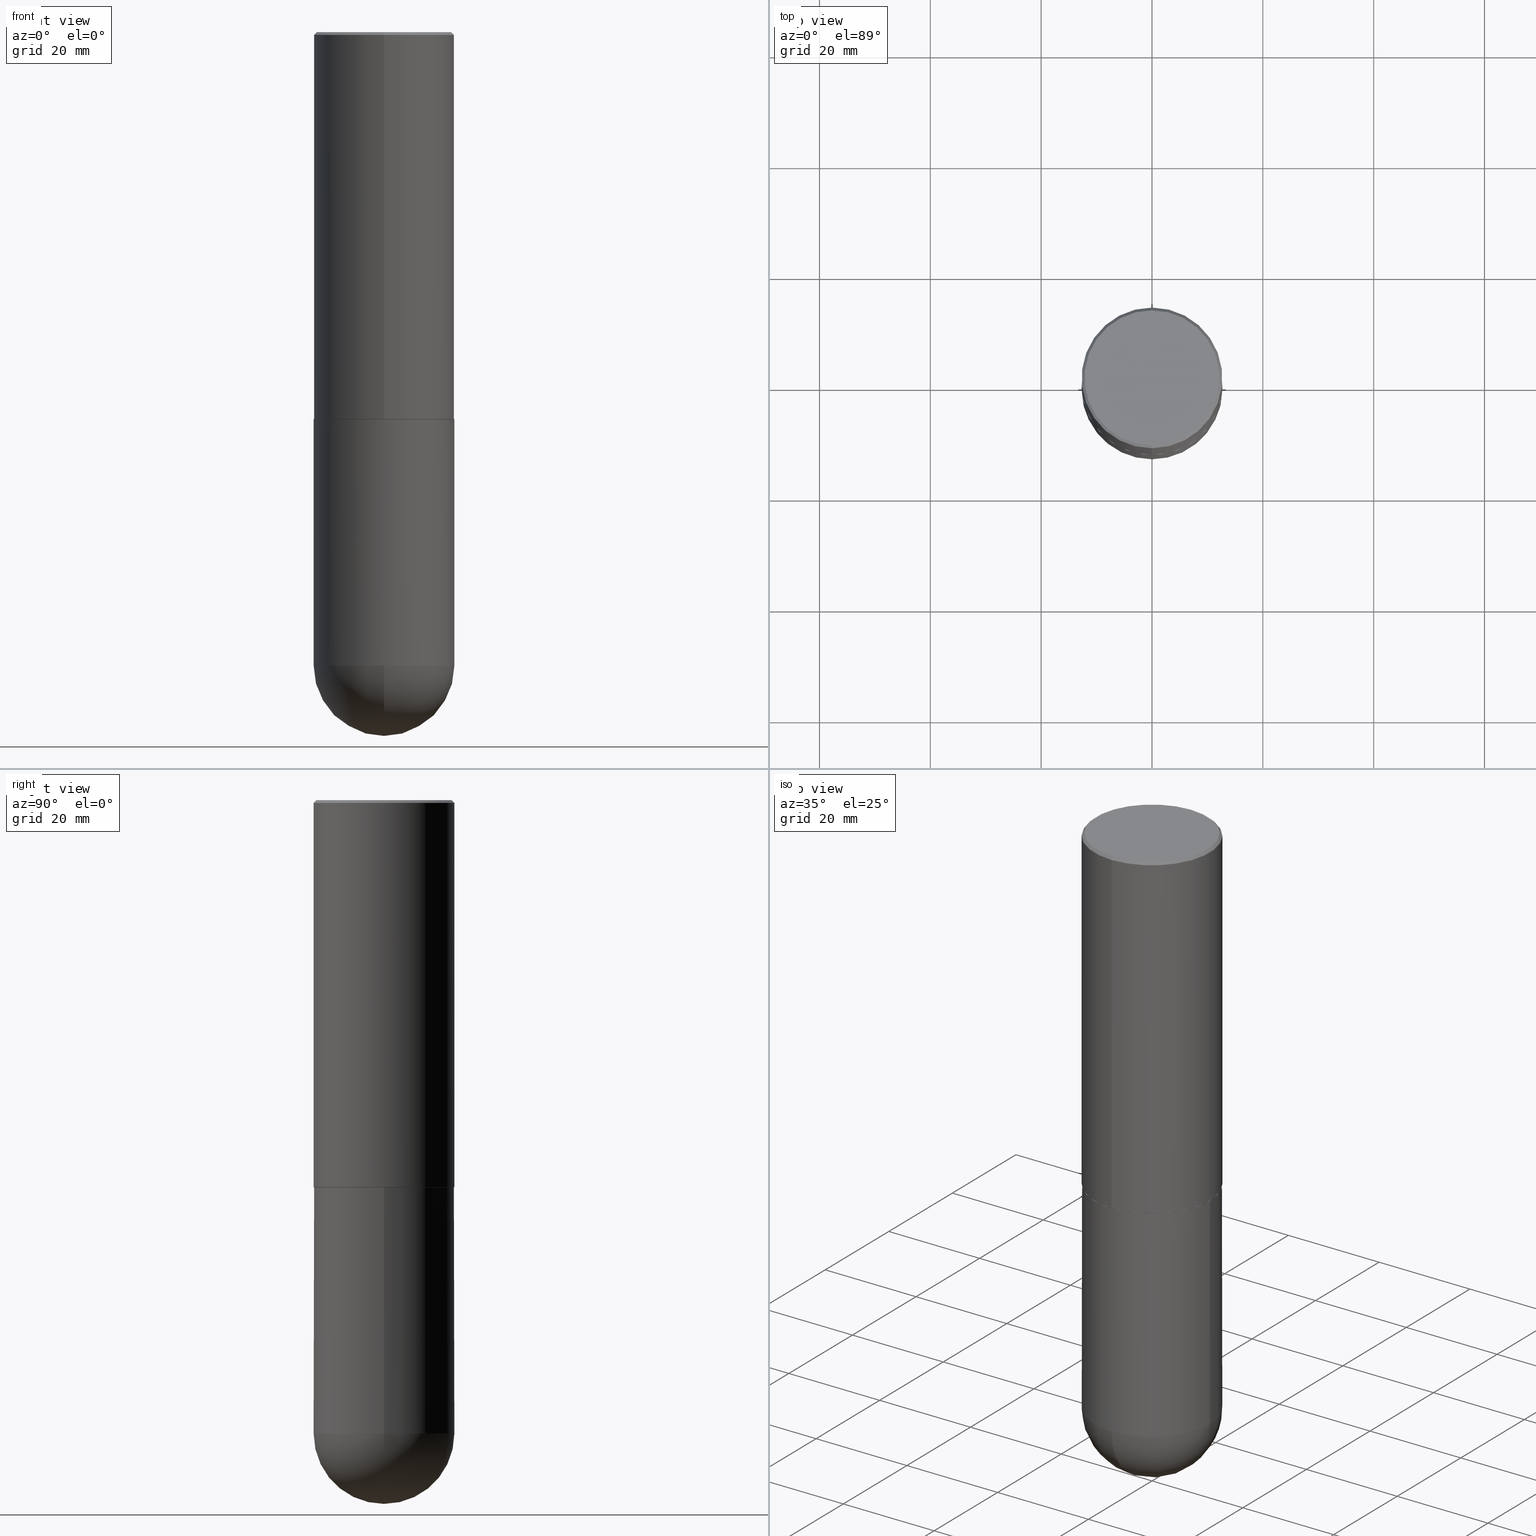
[diagram: canonical four-view strip — front | top / right | iso, engineering-drawing reading convention]
A machine part, canonical four-view strip (front | top / right | iso — engineering-drawing reading convention). The complete STEP part file that produces these views, byte-faithful:
ISO-10303-21;
HEADER;
FILE_DESCRIPTION (( 'STEP AP203' ),
    '1' );
FILE_NAME ('31899.STEP',
    '2024-02-21T17:08:31',
    ( '' ),
    ( '' ),
    'SwSTEP 2.0',
    'SolidWorks 2023',
    '' );
FILE_SCHEMA (( 'CONFIG_CONTROL_DESIGN' ));
ENDSEC;

DATA;
#1 = DIRECTION ( 'NONE',  ( 6.982962677686265922E-15, 1.000000000000000000, -3.278217592397114284E-15 ) ) ;
#2 = CLOSED_SHELL ( 'NONE', ( #189, #10, #110, #310, #321, #291, #235, #168 ) ) ;
#3 = DIRECTION ( 'NONE',  ( -2.445544383253700702E-29, 3.491373108179382004E-15, 1.000000000000000000 ) ) ;
#4 = AXIS2_PLACEMENT_3D ( 'NONE', #370, #64, #314 ) ;
#5 = FACE_OUTER_BOUND ( 'NONE', #52, .T. ) ;
#6 = DIRECTION ( 'NONE',  ( -6.982962677686265922E-15, -1.000000000000000000, 3.491373108179382399E-15 ) ) ;
#7 = CARTESIAN_POINT ( 'NONE',  ( 1.067348984991922956E-28, -1.618584839293420562E-14, -4.500000000000000000 ) ) ;
#8 = SPHERICAL_SURFACE ( 'NONE', #31, 0.5000000000000002220 ) ;
#9 = VECTOR ( 'NONE', #378, 39.37007874015748143 ) ;
#10 = ADVANCED_FACE ( 'NONE', ( #38 ), #125, .T. ) ;
#11 = EDGE_CURVE ( 'NONE', #402, #353, #230, .T. ) ;
#12 = ADVANCED_BREP_SHAPE_REPRESENTATION ( '31899', ( #260, #121, #95 ), #403 ) ;
#13 = ORIENTED_EDGE ( 'NONE', *, *, #245, .T. ) ;
#14 = CIRCLE ( 'NONE', #255, 0.4999999999999999445 ) ;
#15 = VERTEX_POINT ( 'NONE', #285 ) ;
#16 = APPROVAL_DATE_TIME ( #173, #396 ) ;
#17 = DESIGN_CONTEXT ( 'detailed design', #91, 'design' ) ;
#18 = DIRECTION ( 'NONE',  ( -2.445544383253700702E-29, 3.491373108179382004E-15, 1.000000000000000000 ) ) ;
#19 = ORIENTED_EDGE ( 'NONE', *, *, #320, .T. ) ;
#20 = DIMENSIONAL_EXPONENTS ( 1.000000000000000000, 0.000000000000000000, 0.000000000000000000, 0.000000000000000000, 0.000000000000000000, 0.000000000000000000, 0.000000000000000000 ) ;
#21 = CARTESIAN_POINT ( 'NONE',  ( 1.100460962783311244E-28, -1.571166602479415374E-14, -4.499999999999999112 ) ) ;
#22 = LOCAL_TIME ( 12, 8, 31.00000000000000000, #85 ) ;
#23 = PERSON_AND_ORGANIZATION ( #328, #361 ) ;
#24 = DIRECTION ( 'NONE',  ( -2.445468806185136597E-29, 3.491481338843145583E-15, 1.000000000000000000 ) ) ;
#25 = ORIENTED_EDGE ( 'NONE', *, *, #386, .F. ) ;
#26 = CARTESIAN_POINT ( 'NONE',  ( 6.722801509564422715E-29, -9.597784674385121064E-15, -2.749000000000000110 ) ) ;
#27 = DIRECTION ( 'NONE',  ( -6.982962677686265922E-15, -1.000000000000000000, 3.491373108179382004E-15 ) ) ;
#28 = CC_DESIGN_PERSON_AND_ORGANIZATION_ASSIGNMENT ( #305, #181, ( #385 ) ) ;
#29 = CARTESIAN_POINT ( 'NONE',  ( 1.067348984991922956E-28, -1.618584839293420562E-14, -4.500000000000000000 ) ) ;
#30 = PERSON_AND_ORGANIZATION ( #328, #361 ) ;
#31 = AXIS2_PLACEMENT_3D ( 'NONE', #171, #266, #172 ) ;
#32 = CC_DESIGN_APPROVAL ( #294, ( #385 ) ) ;
#33 = CARTESIAN_POINT ( 'NONE',  ( 4.891088766507428205E-31, -6.982746216358801726E-17, -0.02000000000000010797 ) ) ;
#34 = CARTESIAN_POINT ( 'NONE',  ( 4.891088766507428205E-31, -6.982746216358801726E-17, -0.02000000000000010797 ) ) ;
#35 = CARTESIAN_POINT ( 'NONE',  ( 0.000000000000000000, 0.000000000000000000, 0.000000000000000000 ) ) ;
#36 = FACE_OUTER_BOUND ( 'NONE', #265, .T. ) ;
#37 = CARTESIAN_POINT ( 'NONE',  ( 4.891088766507428205E-31, -6.982746216358801726E-17, -0.02000000000000010797 ) ) ;
#38 = FACE_OUTER_BOUND ( 'NONE', #267, .T. ) ;
#39 = ADVANCED_FACE ( 'NONE', ( #356 ), #8, .T. ) ;
#40 = CARTESIAN_POINT ( 'NONE',  ( 3.491481338843242218E-15, 0.4999999999999841238, -4.500000000000000888 ) ) ;
#41 = DIRECTION ( 'NONE',  ( -6.982962677686265922E-15, -1.000000000000000000, 3.491643216902136802E-15 ) ) ;
#42 = ORIENTED_EDGE ( 'NONE', *, *, #362, .T. ) ;
#43 = DIRECTION ( 'NONE',  ( -2.445544383253700983E-29, 3.491373108179382004E-15, 1.000000000000000000 ) ) ;
#44 = VERTEX_POINT ( 'NONE', #69 ) ;
#45 = EDGE_LOOP ( 'NONE', ( #229, #372, #334, #313 ) ) ;
#46 = PERSON_AND_ORGANIZATION ( #328, #361 ) ;
#47 = EDGE_LOOP ( 'NONE', ( #101, #65, #77, #217 ) ) ;
#48 = CLOSED_SHELL ( 'NONE', ( #104, #39, #132, #202, #199 ) ) ;
#49 = CC_DESIGN_APPROVAL ( #74, ( #76 ) ) ;
#50 = ORIENTED_EDGE ( 'NONE', *, *, #409, .T. ) ;
#51 = DIRECTION ( 'NONE',  ( 2.445544383253700422E-29, -3.491373108179382004E-15, -1.000000000000000000 ) ) ;
#52 = EDGE_LOOP ( 'NONE', ( #135, #257, #389, #316 ) ) ;
#53 = EDGE_CURVE ( 'NONE', #203, #94, #394, .T. ) ;
#54 = DIRECTION ( 'NONE',  ( -7.105427357601001859E-15, -1.000000000000000000, 0.000000000000000000 ) ) ;
#55 = DIRECTION ( 'NONE',  ( -2.445468806185136597E-29, 3.491481338843145583E-15, 1.000000000000000000 ) ) ;
#56 = CARTESIAN_POINT ( 'NONE',  ( 1.100460962783311244E-28, -1.571166602479415374E-14, -4.499999999999999112 ) ) ;
#57 = CARTESIAN_POINT ( 'NONE',  ( -3.552713678800393250E-15, -0.5000000000000160982, -4.499999999999998224 ) ) ;
#58 = PERSON_AND_ORGANIZATION_ROLE ( 'classification_officer' ) ;
#59 = AXIS2_PLACEMENT_3D ( 'NONE', #300, #24, #244 ) ;
#60 = AXIS2_PLACEMENT_3D ( 'NONE', #242, #92, #178 ) ;
#61 = DIRECTION ( 'NONE',  ( -2.445468806185136597E-29, 3.491481338843145583E-15, 1.000000000000000000 ) ) ;
#62 = DIRECTION ( 'NONE',  ( -6.982962677686265922E-15, -1.000000000000000000, 3.278217592397113496E-15 ) ) ;
#63 = ORIENTED_EDGE ( 'NONE', *, *, #297, .T. ) ;
#64 = DIRECTION ( 'NONE',  ( -2.445468806185136597E-29, 3.491481338843145583E-15, 1.000000000000000000 ) ) ;
#65 = ORIENTED_EDGE ( 'NONE', *, *, #53, .F. ) ;
#66 = LINE ( 'NONE', #254, #9 ) ;
#67 = ORIENTED_EDGE ( 'NONE', *, *, #80, .T. ) ;
#68 = CIRCLE ( 'NONE', #354, 0.4989999999999999991 ) ;
#69 = CARTESIAN_POINT ( 'NONE',  ( 3.549160965121768662E-15, 0.4989999999999903402, -2.750000000000002220 ) ) ;
#70 = CARTESIAN_POINT ( 'NONE',  ( 6.725247053947675811E-29, -9.601276047493300215E-15, -2.750000000000000000 ) ) ;
#71 = EDGE_CURVE ( 'NONE', #195, #148, #128, .T. ) ;
#72 = DIRECTION ( 'NONE',  ( -2.445544383253700422E-29, 3.491373108179382004E-15, 1.000000000000000000 ) ) ;
#73 = AXIS2_PLACEMENT_3D ( 'NONE', #21, #365, #108 ) ;
#74 = APPROVAL ( #276, 'UNSPECIFIED' ) ;
#75 = PERSON_AND_ORGANIZATION ( #328, #361 ) ;
#76 = SECURITY_CLASSIFICATION ( '', '', #248 ) ;
#77 = ORIENTED_EDGE ( 'NONE', *, *, #299, .T. ) ;
#78 = EDGE_CURVE ( 'NONE', #141, #15, #358, .T. ) ;
#79 = APPROVAL_ROLE ( '' ) ;
#80 = EDGE_CURVE ( 'NONE', #353, #195, #116, .T. ) ;
#81 = MECHANICAL_CONTEXT ( 'NONE', #366, 'mechanical' ) ;
#82 = LINE ( 'NONE', #150, #261 ) ;
#83 = VECTOR ( 'NONE', #164, 39.37007874015748143 ) ;
#84 = EDGE_CURVE ( 'NONE', #247, #44, #68, .T. ) ;
#85 = COORDINATED_UNIVERSAL_TIME_OFFSET ( 5, 0, .BEHIND. ) ;
#86 = FACE_OUTER_BOUND ( 'NONE', #47, .T. ) ;
#87 = CARTESIAN_POINT ( 'NONE',  ( 6.725247053947676932E-29, -9.601276047493301793E-15, -2.750000000000000444 ) ) ;
#88 = VERTEX_POINT ( 'NONE', #147 ) ;
#89 = CARTESIAN_POINT ( 'NONE',  ( 1.067348984991922956E-28, -1.618584839293420562E-14, -4.500000000000000000 ) ) ;
#90 = VERTEX_POINT ( 'NONE', #359 ) ;
#91 = APPLICATION_CONTEXT ( 'configuration controlled 3d designs of mechanical parts and assemblies' ) ;
#92 = DIRECTION ( 'NONE',  ( -2.445544383253700702E-29, 3.491373108179382004E-15, 1.000000000000000000 ) ) ;
#93 = DIRECTION ( 'NONE',  ( 2.438088387897960049E-29, -3.491481338843145188E-15, -1.000000000000000000 ) ) ;
#94 = VERTEX_POINT ( 'NONE', #399 ) ;
#95 = AXIS2_PLACEMENT_3D ( 'NONE', #143, #393, #109 ) ;
#96 = VECTOR ( 'NONE', #338, 39.37007874015748143 ) ;
#97 = DIRECTION ( 'NONE',  ( -4.937700262164547253E-15, -0.7071067811865450192, 0.7071067811865499042 ) ) ;
#98 = DIRECTION ( 'NONE',  ( -6.982962677686265922E-15, -1.000000000000000000, 3.284787166730577015E-15 ) ) ;
#99 = DIRECTION ( 'NONE',  ( 5.024295867788060812E-15, 0.7071067811865499042, 0.7071067811865450192 ) ) ;
#100 = EDGE_CURVE ( 'NONE', #191, #141, #153, .T. ) ;
#101 = ORIENTED_EDGE ( 'NONE', *, *, #146, .F. ) ;
#102 = CONICAL_SURFACE ( 'NONE', #384, 0.4999999999999999445, 0.7853981633974447263 ) ;
#103 = CIRCLE ( 'NONE', #163, 0.5000000000000000000 ) ;
#104 = ADVANCED_FACE ( 'NONE', ( #117 ), #216, .T. ) ;
#105 =( NAMED_UNIT ( * ) SI_UNIT ( $, .STERADIAN. ) SOLID_ANGLE_UNIT ( ) );
#106 = CC_DESIGN_PERSON_AND_ORGANIZATION_ASSIGNMENT ( #187, #377, ( #385 ) ) ;
#107 = ORIENTED_EDGE ( 'NONE', *, *, #113, .F. ) ;
#108 = DIRECTION ( 'NONE',  ( 1.000000000000000000, -6.982962677686262766E-15, 0.000000000000000000 ) ) ;
#109 = DIRECTION ( 'NONE',  ( 1.000000000000000000, 0.000000000000000000, 0.000000000000000000 ) ) ;
#110 = ADVANCED_FACE ( 'NONE', ( #5 ), #102, .T. ) ;
#111 = PLANE ( 'NONE',  #264 ) ;
#112 = DIRECTION ( 'NONE',  ( -2.445468806185136597E-29, 3.491481338843145583E-15, 1.000000000000000000 ) ) ;
#113 = EDGE_CURVE ( 'NONE', #253, #15, #162, .T. ) ;
#114 = EDGE_LOOP ( 'NONE', ( #186, #332, #298, #330 ) ) ;
#115 = APPROVAL_ROLE ( '' ) ;
#116 = CIRCLE ( 'NONE', #139, 0.5000000000000000000 ) ;
#117 = FACE_OUTER_BOUND ( 'NONE', #363, .T. ) ;
#118 = CONICAL_SURFACE ( 'NONE', #295, 0.4999999999999999445, 0.7853981633974447263 ) ;
#119 = SHAPE_DEFINITION_REPRESENTATION ( #165, #12 ) ;
#120 = DIRECTION ( 'NONE',  ( -6.982962677686265922E-15, -1.000000000000000000, 3.284787166730577015E-15 ) ) ;
#121 = MANIFOLD_SOLID_BREP ( 'Body-Move/Copy2[2]', #2 ) ;
#122 = DIRECTION ( 'NONE',  ( 1.000000000000000000, -6.982962677686266711E-15, 4.876176775795935793E-29 ) ) ;
#123 = APPROVAL_DATE_TIME ( #311, #74 ) ;
#124 = PLANE ( 'NONE',  #175 ) ;
#125 = CYLINDRICAL_SURFACE ( 'NONE', #343, 0.5000000000000001110 ) ;
#126 = DIRECTION ( 'NONE',  ( 2.445544383253700702E-29, -3.491373108179382004E-15, -1.000000000000000000 ) ) ;
#127 = CARTESIAN_POINT ( 'NONE',  ( 3.421651712066269268E-15, 0.4799999999999996492, -1.377115168337680020E-15 ) ) ;
#128 = CIRCLE ( 'NONE', #73, 0.5000000000000000000 ) ;
#129 = EDGE_LOOP ( 'NONE', ( #383, #197, #225, #151 ) ) ;
#130 = DATE_TIME_ROLE ( 'creation_date' ) ;
#131 = AXIS2_PLACEMENT_3D ( 'NONE', #87, #309, #213 ) ;
#132 = ADVANCED_FACE ( 'NONE', ( #289 ), #315, .T. ) ;
#133 = DIRECTION ( 'NONE',  ( 4.937700262164529898E-15, 0.7071067811865425767, -0.7071067811865524577 ) ) ;
#134 = CARTESIAN_POINT ( 'NONE',  ( 3.552713678800536428E-15, 0.4999999999999907296, -2.749000000000001886 ) ) ;
#135 = ORIENTED_EDGE ( 'NONE', *, *, #320, .F. ) ;
#136 = FACE_OUTER_BOUND ( 'NONE', #198, .T. ) ;
#137 = CIRCLE ( 'NONE', #59, 0.5000000000000000000 ) ;
#138 = LOCAL_TIME ( 12, 8, 31.00000000000000000, #347 ) ;
#139 = AXIS2_PLACEMENT_3D ( 'NONE', #397, #112, #392 ) ;
#140 = CONICAL_SURFACE ( 'NONE', #131, 0.4989999999999999991, 0.7853981633974482790 ) ;
#141 = VERTEX_POINT ( 'NONE', #134 ) ;
#142 = PERSON_AND_ORGANIZATION_ROLE ( 'creator' ) ;
#143 = CARTESIAN_POINT ( 'NONE',  ( 0.000000000000000000, 0.000000000000000000, 0.000000000000000000 ) ) ;
#144 = LOCAL_TIME ( 12, 8, 31.00000000000000000, #192 ) ;
#145 = ORIENTED_EDGE ( 'NONE', *, *, #219, .F. ) ;
#146 = EDGE_CURVE ( 'NONE', #94, #253, #82, .T. ) ;
#147 = CARTESIAN_POINT ( 'NONE',  ( -0.5000000000000000000, -9.103906174505900082E-15, -2.750000000000000000 ) ) ;
#148 = VERTEX_POINT ( 'NONE', #57 ) ;
#149 = DATE_AND_TIME ( #226, #144 ) ;
#150 = CARTESIAN_POINT ( 'NONE',  ( -3.430248998885764598E-15, -0.5000000000000000000, -0.01999999999999835937 ) ) ;
#151 = ORIENTED_EDGE ( 'NONE', *, *, #329, .F. ) ;
#152 = DATE_AND_TIME ( #258, #379 ) ;
#153 = CIRCLE ( 'NONE', #368, 0.5000000000000003331 ) ;
#154 = CIRCLE ( 'NONE', #4, 0.5000000000000000000 ) ;
#155 = DIRECTION ( 'NONE',  ( -2.445468806185136597E-29, 3.491481338843145583E-15, 1.000000000000000000 ) ) ;
#156 = FACE_OUTER_BOUND ( 'NONE', #337, .T. ) ;
#157 = DIRECTION ( 'NONE',  ( 1.000000000000000000, -6.982962677686265922E-15, 4.883557194083112340E-29 ) ) ;
#158 = CARTESIAN_POINT ( 'NONE',  ( 6.725039217009124520E-29, -9.601573681818649859E-15, -2.750000000000000000 ) ) ;
#159 = VERTEX_POINT ( 'NONE', #212 ) ;
#160 = CARTESIAN_POINT ( 'NONE',  ( -3.430248998885764598E-15, -0.5000000000000000000, -0.01999999999999835937 ) ) ;
#161 = DIRECTION ( 'NONE',  ( -1.000000000000000000, 6.982962677686265922E-15, -4.883557194083113462E-29 ) ) ;
#162 = CIRCLE ( 'NONE', #278, 0.4999999999999999445 ) ;
#163 = AXIS2_PLACEMENT_3D ( 'NONE', #158, #61, #283 ) ;
#164 = DIRECTION ( 'NONE',  ( -2.445468806185136877E-29, 3.491481338843145188E-15, 1.000000000000000000 ) ) ;
#165 = PRODUCT_DEFINITION_SHAPE ( 'NONE', 'NONE',  #274 ) ;
#166 = VECTOR ( 'NONE', #133, 39.37007874015748143 ) ;
#167 = APPLICATION_PROTOCOL_DEFINITION ( 'international standard', 'config_control_design', 1994, #91 ) ;
#168 = ADVANCED_FACE ( 'NONE', ( #185 ), #333, .F. ) ;
#169 = ORIENTED_EDGE ( 'NONE', *, *, #53, .T. ) ;
#170 = EDGE_CURVE ( 'NONE', #88, #159, #137, .T. ) ;
#171 = CARTESIAN_POINT ( 'NONE',  ( 1.067348984991922956E-28, -1.618584839293420562E-14, -4.500000000000000000 ) ) ;
#172 = DIRECTION ( 'NONE',  ( 6.982962677686265922E-15, 1.000000000000000000, -3.278217592397114284E-15 ) ) ;
#173 = DATE_AND_TIME ( #210, #231 ) ;
#174 = AXIS2_PLACEMENT_3D ( 'NONE', #303, #55, #279 ) ;
#175 = AXIS2_PLACEMENT_3D ( 'NONE', #376, #93, #345 ) ;
#176 = DIRECTION ( 'NONE',  ( 6.982962677686265922E-15, 1.000000000000000000, -3.491373108179382004E-15 ) ) ;
#177 = ORIENTED_EDGE ( 'NONE', *, *, #245, .F. ) ;
#178 = DIRECTION ( 'NONE',  ( -6.982962677686265922E-15, -1.000000000000000000, 3.491373108179382399E-15 ) ) ;
#179 = FACE_OUTER_BOUND ( 'NONE', #346, .T. ) ;
#180 = ORIENTED_EDGE ( 'NONE', *, *, #84, .F. ) ;
#181 = PERSON_AND_ORGANIZATION_ROLE ( 'creator' ) ;
#182 = CARTESIAN_POINT ( 'NONE',  ( 3.491481338843132961E-15, 0.4999999999999998335, -0.02000000000000185310 ) ) ;
#183 = CC_DESIGN_PERSON_AND_ORGANIZATION_ASSIGNMENT ( #30, #58, ( #76 ) ) ;
#184 = AXIS2_PLACEMENT_3D ( 'NONE', #89, #161, #1 ) ;
#185 = FACE_OUTER_BOUND ( 'NONE', #275, .T. ) ;
#186 = ORIENTED_EDGE ( 'NONE', *, *, #387, .F. ) ;
#187 = PERSON_AND_ORGANIZATION ( #328, #361 ) ;
#188 = LINE ( 'NONE', #182, #166 ) ;
#189 = ADVANCED_FACE ( 'NONE', ( #371 ), #140, .T. ) ;
#190 = DIRECTION ( 'NONE',  ( -2.445468806185136597E-29, 3.491481338843145583E-15, 1.000000000000000000 ) ) ;
#191 = VERTEX_POINT ( 'NONE', #408 ) ;
#192 = COORDINATED_UNIVERSAL_TIME_OFFSET ( 5, 0, .BEHIND. ) ;
#193 = CARTESIAN_POINT ( 'NONE',  ( 4.891088766507428205E-31, -6.982746216358801726E-17, -0.02000000000000010797 ) ) ;
#194 = DIRECTION ( 'NONE',  ( 6.982962677686265922E-15, 1.000000000000000000, -3.491643216902136802E-15 ) ) ;
#195 = VERTEX_POINT ( 'NONE', #336 ) ;
#196 = CARTESIAN_POINT ( 'NONE',  ( -3.484498376165379105E-15, -0.4990000000000096025, -2.749999999999998668 ) ) ;
#197 = ORIENTED_EDGE ( 'NONE', *, *, #387, .T. ) ;
#198 = EDGE_LOOP ( 'NONE', ( #180, #145 ) ) ;
#199 = ADVANCED_FACE ( 'NONE', ( #179 ), #405, .T. ) ;
#200 = CIRCLE ( 'NONE', #319, 0.4799999999999996492 ) ;
#201 = CARTESIAN_POINT ( 'NONE',  ( 6.722801509564422715E-29, -9.597784674385121064E-15, -2.749000000000000110 ) ) ;
#202 = ADVANCED_FACE ( 'NONE', ( #156 ), #124, .F. ) ;
#203 = VERTEX_POINT ( 'NONE', #127 ) ;
#204 = ORIENTED_EDGE ( 'NONE', *, *, #71, .T. ) ;
#205 = UNCERTAINTY_MEASURE_WITH_UNIT (LENGTH_MEASURE( 1.000000000000000082E-05 ), #407, 'distance_accuracy_value', 'NONE');
#206 = CIRCLE ( 'NONE', #369, 0.5000000000000003331 ) ;
#207 = PERSON_AND_ORGANIZATION_ROLE ( 'design_owner' ) ;
#208 = PRODUCT_RELATED_PRODUCT_CATEGORY ( 'detail', '', ( #228 ) ) ;
#209 = ORIENTED_EDGE ( 'NONE', *, *, #349, .T. ) ;
#210 = CALENDAR_DATE ( 2024, 21, 2 ) ;
#211 = CIRCLE ( 'NONE', #325, 0.5000000000000000000 ) ;
#212 = CARTESIAN_POINT ( 'NONE',  ( 0.5000000000000000000, -1.309305502066178321E-14, -2.750000000000000000 ) ) ;
#213 = DIRECTION ( 'NONE',  ( -6.982962677686265922E-15, -1.000000000000000000, 3.284787166730577015E-15 ) ) ;
#214 = COORDINATED_UNIVERSAL_TIME_OFFSET ( 5, 0, .BEHIND. ) ;
#215 = DIRECTION ( 'NONE',  ( -6.982962677686265922E-15, -1.000000000000000000, 3.491373108179382399E-15 ) ) ;
#216 = CYLINDRICAL_SURFACE ( 'NONE', #174, 0.5000000000000000000 ) ;
#217 = ORIENTED_EDGE ( 'NONE', *, *, #352, .T. ) ;
#218 = APPROVAL_STATUS ( 'not_yet_approved' ) ;
#219 = EDGE_CURVE ( 'NONE', #44, #247, #262, .T. ) ;
#220 = CARTESIAN_POINT ( 'NONE',  ( 6.725247053947676932E-29, -9.601276047493301793E-15, -2.750000000000000444 ) ) ;
#221 = DIRECTION ( 'NONE',  ( -2.445544383253700702E-29, 3.491373108179382004E-15, 1.000000000000000000 ) ) ;
#222 = CIRCLE ( 'NONE', #238, 0.5000000000000002220 ) ;
#223 = CALENDAR_DATE ( 2024, 21, 2 ) ;
#224 = DIRECTION ( 'NONE',  ( -2.445544383253700702E-29, 3.491373108179382004E-15, 1.000000000000000000 ) ) ;
#225 = ORIENTED_EDGE ( 'NONE', *, *, #100, .F. ) ;
#226 = CALENDAR_DATE ( 2024, 21, 2 ) ;
#227 = CARTESIAN_POINT ( 'NONE',  ( 1.191760341024128201E-28, -1.790097289237709482E-14, -5.000000000000000000 ) ) ;
#228 = PRODUCT ( '31899', '31899', '', ( #81 ) ) ;
#229 = ORIENTED_EDGE ( 'NONE', *, *, #292, .F. ) ;
#230 = CIRCLE ( 'NONE', #307, 0.5000000000000002220 ) ;
#231 = LOCAL_TIME ( 12, 8, 31.00000000000000000, #390 ) ;
#232 = ORIENTED_EDGE ( 'NONE', *, *, #71, .F. ) ;
#233 = ORIENTED_EDGE ( 'NONE', *, *, #386, .T. ) ;
#234 = APPROVAL_PERSON_ORGANIZATION ( #23, #294, #272 ) ;
#235 = ADVANCED_FACE ( 'NONE', ( #136 ), #111, .F. ) ;
#236 = DIRECTION ( 'NONE',  ( -6.982962677686265922E-15, -1.000000000000000000, 3.491373108179382399E-15 ) ) ;
#237 = APPLICATION_PROTOCOL_DEFINITION ( 'international standard', 'config_control_design', 1994, #366 ) ;
#238 = AXIS2_PLACEMENT_3D ( 'NONE', #7, #375, #54 ) ;
#239 = ORIENTED_EDGE ( 'NONE', *, *, #78, .F. ) ;
#240 = CARTESIAN_POINT ( 'NONE',  ( -7.305915243628390316E-45, 1.043026501048613982E-30, 2.987439235884223367E-16 ) ) ;
#241 = ORIENTED_EDGE ( 'NONE', *, *, #170, .F. ) ;
#242 = CARTESIAN_POINT ( 'NONE',  ( 0.000000000000000000, 0.000000000000000000, 0.000000000000000000 ) ) ;
#243 = AXIS2_PLACEMENT_3D ( 'NONE', #256, #380, #98 ) ;
#244 = DIRECTION ( 'NONE',  ( 1.000000000000000000, -6.982962677686266711E-15, 0.000000000000000000 ) ) ;
#245 = EDGE_CURVE ( 'NONE', #159, #88, #103, .T. ) ;
#246 = CC_DESIGN_DATE_AND_TIME_ASSIGNMENT ( #149, #130, ( #274 ) ) ;
#247 = VERTEX_POINT ( 'NONE', #342 ) ;
#248 = SECURITY_CLASSIFICATION_LEVEL ( 'unclassified' ) ;
#249 =( LENGTH_UNIT ( ) NAMED_UNIT ( * ) SI_UNIT ( $, .METRE. ) );
#250 = DIRECTION ( 'NONE',  ( 2.445544383253700702E-29, -3.491373108179382004E-15, -1.000000000000000000 ) ) ;
#251 = ORIENTED_EDGE ( 'NONE', *, *, #292, .T. ) ;
#252 = LINE ( 'NONE', #412, #83 ) ;
#253 = VERTEX_POINT ( 'NONE', #160 ) ;
#254 = CARTESIAN_POINT ( 'NONE',  ( -3.491481338843133750E-15, -0.5000000000000001110, 1.745686554089691594E-15 ) ) ;
#255 = AXIS2_PLACEMENT_3D ( 'NONE', #33, #3, #41 ) ;
#256 = CARTESIAN_POINT ( 'NONE',  ( 6.725247053947676932E-29, -9.601276047493301793E-15, -2.750000000000000444 ) ) ;
#257 = ORIENTED_EDGE ( 'NONE', *, *, #146, .T. ) ;
#258 = CALENDAR_DATE ( 2024, 21, 2 ) ;
#259 = DIRECTION ( 'NONE',  ( -2.445544383253700702E-29, 3.491373108179382004E-15, 1.000000000000000000 ) ) ;
#260 = MANIFOLD_SOLID_BREP ( 'Body-Move/Copy2[1]', #48 ) ;
#261 = VECTOR ( 'NONE', #339, 39.37007874015748143 ) ;
#262 = CIRCLE ( 'NONE', #243, 0.4989999999999999991 ) ;
#263 = CC_DESIGN_DATE_AND_TIME_ASSIGNMENT ( #406, #400, ( #76 ) ) ;
#264 = AXIS2_PLACEMENT_3D ( 'NONE', #70, #72, #27 ) ;
#265 = EDGE_LOOP ( 'NONE', ( #239, #42, #410, #391 ) ) ;
#266 = DIRECTION ( 'NONE',  ( -1.000000000000000000, 6.982962677686265922E-15, -4.883557194083113462E-29 ) ) ;
#267 = EDGE_LOOP ( 'NONE', ( #271, #270, #107, #374 ) ) ;
#268 = AXIS2_PLACEMENT_3D ( 'NONE', #284, #190, #122 ) ;
#269 = CARTESIAN_POINT ( 'NONE',  ( 3.552713678800501718E-15, 0.5000000000000001110, -1.745686554089691594E-15 ) ) ;
#270 = ORIENTED_EDGE ( 'NONE', *, *, #78, .T. ) ;
#271 = ORIENTED_EDGE ( 'NONE', *, *, #100, .T. ) ;
#272 = APPROVAL_ROLE ( '' ) ;
#273 = EDGE_CURVE ( 'NONE', #191, #253, #66, .T. ) ;
#274 = PRODUCT_DEFINITION ( 'UNKNOWN', '', #385, #17 ) ;
#275 = EDGE_LOOP ( 'NONE', ( #169, #19 ) ) ;
#276 = APPROVAL_STATUS ( 'not_yet_approved' ) ;
#277 = DIRECTION ( 'NONE',  ( 6.982962677686265922E-15, 1.000000000000000000, -3.491643216902136802E-15 ) ) ;
#278 = AXIS2_PLACEMENT_3D ( 'NONE', #37, #221, #367 ) ;
#279 = DIRECTION ( 'NONE',  ( 1.000000000000000000, -6.982962677686266711E-15, 4.876176775795935793E-29 ) ) ;
#280 = LENGTH_MEASURE_WITH_UNIT ( LENGTH_MEASURE( 0.02539999999999999897 ), #249 );
#281 = DIRECTION ( 'NONE',  ( 6.982962677686266711E-15, 1.000000000000000000, 0.000000000000000000 ) ) ;
#282 = CC_DESIGN_PERSON_AND_ORGANIZATION_ASSIGNMENT ( #75, #207, ( #228 ) ) ;
#283 = DIRECTION ( 'NONE',  ( 1.000000000000000000, -6.982962677686266711E-15, 0.000000000000000000 ) ) ;
#284 = CARTESIAN_POINT ( 'NONE',  ( 0.000000000000000000, 0.000000000000000000, 0.000000000000000000 ) ) ;
#285 = CARTESIAN_POINT ( 'NONE',  ( 3.491481338843132961E-15, 0.4999999999999998335, -0.02000000000000185310 ) ) ;
#286 = LINE ( 'NONE', #196, #355 ) ;
#287 = AXIS2_PLACEMENT_3D ( 'NONE', #401, #51, #176 ) ;
#288 = CC_DESIGN_SECURITY_CLASSIFICATION ( #76, ( #385 ) ) ;
#289 = FACE_OUTER_BOUND ( 'NONE', #45, .T. ) ;
#290 = CARTESIAN_POINT ( 'NONE',  ( 3.545608251442966974E-15, 0.4989999999999903402, -2.750000000000002220 ) ) ;
#291 = ADVANCED_FACE ( 'NONE', ( #348 ), #344, .T. ) ;
#292 = EDGE_CURVE ( 'NONE', #402, #148, #222, .T. ) ;
#293 =( NAMED_UNIT ( * ) PLANE_ANGLE_UNIT ( ) SI_UNIT ( $, .RADIAN. ) );
#294 = APPROVAL ( #218, 'UNSPECIFIED' ) ;
#295 = AXIS2_PLACEMENT_3D ( 'NONE', #193, #126, #277 ) ;
#296 = CARTESIAN_POINT ( 'NONE',  ( 6.725247053947676932E-29, -9.601276047493301793E-15, -2.750000000000000444 ) ) ;
#297 = EDGE_CURVE ( 'NONE', #195, #88, #252, .T. ) ;
#298 = ORIENTED_EDGE ( 'NONE', *, *, #329, .T. ) ;
#299 = EDGE_CURVE ( 'NONE', #203, #15, #188, .T. ) ;
#300 = CARTESIAN_POINT ( 'NONE',  ( 6.725039217009124520E-29, -9.601573681818649859E-15, -2.750000000000000000 ) ) ;
#301 = ORIENTED_EDGE ( 'NONE', *, *, #170, .T. ) ;
#302 = DIRECTION ( 'NONE',  ( -6.982962677686265922E-15, -1.000000000000000000, 3.278217592397113496E-15 ) ) ;
#303 = CARTESIAN_POINT ( 'NONE',  ( 0.000000000000000000, 0.000000000000000000, 0.000000000000000000 ) ) ;
#304 = DIRECTION ( 'NONE',  ( -2.445544383253700702E-29, 3.491373108179382004E-15, 1.000000000000000000 ) ) ;
#305 = PERSON_AND_ORGANIZATION ( #328, #361 ) ;
#306 = LINE ( 'NONE', #290, #395 ) ;
#307 = AXIS2_PLACEMENT_3D ( 'NONE', #29, #157, #281 ) ;
#308 = APPROVAL_PERSON_ORGANIZATION ( #381, #74, #115 ) ;
#309 = DIRECTION ( 'NONE',  ( -2.445544383253700702E-29, 3.491373108179382004E-15, 1.000000000000000000 ) ) ;
#310 = ADVANCED_FACE ( 'NONE', ( #86 ), #118, .T. ) ;
#311 = DATE_AND_TIME ( #223, #138 ) ;
#312 = CARTESIAN_POINT ( 'NONE',  ( -7.305915243628390316E-45, 1.043026501048613982E-30, 2.987439235884223367E-16 ) ) ;
#313 = ORIENTED_EDGE ( 'NONE', *, *, #349, .F. ) ;
#314 = DIRECTION ( 'NONE',  ( 1.000000000000000000, -6.982962677686262766E-15, 0.000000000000000000 ) ) ;
#315 = SPHERICAL_SURFACE ( 'NONE', #184, 0.5000000000000002220 ) ;
#316 = ORIENTED_EDGE ( 'NONE', *, *, #299, .F. ) ;
#317 = CYLINDRICAL_SURFACE ( 'NONE', #60, 0.5000000000000001110 ) ;
#318 = VECTOR ( 'NONE', #43, 39.37007874015748143 ) ;
#319 = AXIS2_PLACEMENT_3D ( 'NONE', #312, #224, #215 ) ;
#320 = EDGE_CURVE ( 'NONE', #94, #203, #200, .T. ) ;
#321 = ADVANCED_FACE ( 'NONE', ( #36 ), #317, .T. ) ;
#322 = EDGE_LOOP ( 'NONE', ( #350, #251, #232, #340 ) ) ;
#323 = ORIENTED_EDGE ( 'NONE', *, *, #297, .F. ) ;
#324 = CC_DESIGN_PERSON_AND_ORGANIZATION_ASSIGNMENT ( #398, #142, ( #274 ) ) ;
#325 = AXIS2_PLACEMENT_3D ( 'NONE', #56, #155, #351 ) ;
#326 = CC_DESIGN_APPROVAL ( #396, ( #274 ) ) ;
#327 = DIRECTION ( 'NONE',  ( -2.445544383253700702E-29, 3.491373108179382004E-15, 1.000000000000000000 ) ) ;
#328 = PERSON ( 'UNSPECIFIED', 'UNSPECIFIED', 'UNSPECIFIED', ('UNSPECIFIED'), ('UNSPECIFIED'), ('UNSPECIFIED') ) ;
#329 = EDGE_CURVE ( 'NONE', #247, #191, #286, .T. ) ;
#330 = ORIENTED_EDGE ( 'NONE', *, *, #362, .F. ) ;
#331 = DIRECTION ( 'NONE',  ( -6.982962677686265922E-15, -1.000000000000000000, 3.284787166730577015E-15 ) ) ;
#332 = ORIENTED_EDGE ( 'NONE', *, *, #219, .T. ) ;
#333 = PLANE ( 'NONE',  #287 ) ;
#334 = ORIENTED_EDGE ( 'NONE', *, *, #409, .F. ) ;
#335 = DIRECTION ( 'NONE',  ( -2.445544383253700702E-29, 3.491373108179382004E-15, 1.000000000000000000 ) ) ;
#336 = CARTESIAN_POINT ( 'NONE',  ( -0.5000000000000000000, -9.103906174505904815E-15, -4.499999999999999112 ) ) ;
#337 = EDGE_LOOP ( 'NONE', ( #13, #301 ) ) ;
#338 = DIRECTION ( 'NONE',  ( -2.445468806185136877E-29, 3.491481338843145188E-15, 1.000000000000000000 ) ) ;
#339 = DIRECTION ( 'NONE',  ( -4.851104656540946920E-15, -0.7071067811865474617, -0.7071067811865475727 ) ) ;
#340 = ORIENTED_EDGE ( 'NONE', *, *, #80, .F. ) ;
#341 = APPROVAL_DATE_TIME ( #152, #294 ) ;
#342 = CARTESIAN_POINT ( 'NONE',  ( -3.484498376165379105E-15, -0.4990000000000096025, -2.749999999999998668 ) ) ;
#343 = AXIS2_PLACEMENT_3D ( 'NONE', #35, #304, #6 ) ;
#344 = CONICAL_SURFACE ( 'NONE', #388, 0.4989999999999999991, 0.7853981633974482790 ) ;
#345 = DIRECTION ( 'NONE',  ( -1.000000000000000000, 6.982962677686265922E-15, -4.876176775795935793E-29 ) ) ;
#346 = EDGE_LOOP ( 'NONE', ( #323, #204, #209, #233, #241 ) ) ;
#347 = COORDINATED_UNIVERSAL_TIME_OFFSET ( 5, 0, .BEHIND. ) ;
#348 = FACE_OUTER_BOUND ( 'NONE', #114, .T. ) ;
#349 = EDGE_CURVE ( 'NONE', #148, #90, #154, .T. ) ;
#350 = ORIENTED_EDGE ( 'NONE', *, *, #11, .F. ) ;
#351 = DIRECTION ( 'NONE',  ( 1.000000000000000000, -6.982962677686262766E-15, 0.000000000000000000 ) ) ;
#352 = EDGE_CURVE ( 'NONE', #15, #253, #14, .T. ) ;
#353 = VERTEX_POINT ( 'NONE', #40 ) ;
#354 = AXIS2_PLACEMENT_3D ( 'NONE', #296, #18, #331 ) ;
#355 = VECTOR ( 'NONE', #97, 39.37007874015748854 ) ;
#356 = FACE_OUTER_BOUND ( 'NONE', #322, .T. ) ;
#357 = APPROVAL_PERSON_ORGANIZATION ( #46, #396, #79 ) ;
#358 = LINE ( 'NONE', #269, #318 ) ;
#359 = CARTESIAN_POINT ( 'NONE',  ( 0.5000000000000000000, -1.614810119214953752E-14, -4.499999999999999112 ) ) ;
#360 = AXIS2_PLACEMENT_3D ( 'NONE', #240, #327, #236 ) ;
#361 = ORGANIZATION ( 'UNSPECIFIED', 'UNSPECIFIED', '' ) ;
#362 = EDGE_CURVE ( 'NONE', #141, #191, #206, .T. ) ;
#363 = EDGE_LOOP ( 'NONE', ( #67, #63, #177, #25, #50 ) ) ;
#364 = APPROVAL_STATUS ( 'not_yet_approved' ) ;
#365 = DIRECTION ( 'NONE',  ( -2.445468806185136597E-29, 3.491481338843145583E-15, 1.000000000000000000 ) ) ;
#366 = APPLICATION_CONTEXT ( 'configuration controlled 3d designs of mechanical parts and assemblies' ) ;
#367 = DIRECTION ( 'NONE',  ( -6.982962677686265922E-15, -1.000000000000000000, 3.491643216902136802E-15 ) ) ;
#368 = AXIS2_PLACEMENT_3D ( 'NONE', #201, #373, #62 ) ;
#369 = AXIS2_PLACEMENT_3D ( 'NONE', #26, #259, #302 ) ;
#370 = CARTESIAN_POINT ( 'NONE',  ( 1.100460962783311244E-28, -1.571166602479415374E-14, -4.499999999999999112 ) ) ;
#371 = FACE_OUTER_BOUND ( 'NONE', #129, .T. ) ;
#372 = ORIENTED_EDGE ( 'NONE', *, *, #11, .T. ) ;
#373 = DIRECTION ( 'NONE',  ( -2.445544383253700702E-29, 3.491373108179382004E-15, 1.000000000000000000 ) ) ;
#374 = ORIENTED_EDGE ( 'NONE', *, *, #273, .F. ) ;
#375 = DIRECTION ( 'NONE',  ( -1.000000000000000000, 7.105427357601001070E-15, -4.926315508542082329E-29 ) ) ;
#376 = CARTESIAN_POINT ( 'NONE',  ( 3.491481338843200408E-15, 0.4999999999999903411, -2.750000000000001332 ) ) ;
#377 = PERSON_AND_ORGANIZATION_ROLE ( 'design_supplier' ) ;
#378 = DIRECTION ( 'NONE',  ( -2.445544383253700983E-29, 3.491373108179382004E-15, 1.000000000000000000 ) ) ;
#379 = LOCAL_TIME ( 12, 8, 31.00000000000000000, #214 ) ;
#380 = DIRECTION ( 'NONE',  ( -2.445544383253700702E-29, 3.491373108179382004E-15, 1.000000000000000000 ) ) ;
#381 = PERSON_AND_ORGANIZATION ( #328, #361 ) ;
#382 = LINE ( 'NONE', #404, #96 ) ;
#383 = ORIENTED_EDGE ( 'NONE', *, *, #84, .T. ) ;
#384 = AXIS2_PLACEMENT_3D ( 'NONE', #34, #250, #194 ) ;
#385 = PRODUCT_DEFINITION_FORMATION_WITH_SPECIFIED_SOURCE ( 'ANY', '', #228, .NOT_KNOWN. ) ;
#386 = EDGE_CURVE ( 'NONE', #90, #159, #382, .T. ) ;
#387 = EDGE_CURVE ( 'NONE', #44, #141, #306, .T. ) ;
#388 = AXIS2_PLACEMENT_3D ( 'NONE', #220, #335, #120 ) ;
#389 = ORIENTED_EDGE ( 'NONE', *, *, #113, .T. ) ;
#390 = COORDINATED_UNIVERSAL_TIME_OFFSET ( 5, 0, .BEHIND. ) ;
#391 = ORIENTED_EDGE ( 'NONE', *, *, #352, .F. ) ;
#392 = DIRECTION ( 'NONE',  ( 1.000000000000000000, -6.982962677686262766E-15, 0.000000000000000000 ) ) ;
#393 = DIRECTION ( 'NONE',  ( 0.000000000000000000, 0.000000000000000000, 1.000000000000000000 ) ) ;
#394 = CIRCLE ( 'NONE', #360, 0.4799999999999996492 ) ;
#395 = VECTOR ( 'NONE', #99, 39.37007874015748854 ) ;
#396 = APPROVAL ( #364, 'UNSPECIFIED' ) ;
#397 = CARTESIAN_POINT ( 'NONE',  ( 1.100460962783311244E-28, -1.571166602479415374E-14, -4.499999999999999112 ) ) ;
#398 = PERSON_AND_ORGANIZATION ( #328, #361 ) ;
#399 = CARTESIAN_POINT ( 'NONE',  ( -3.361644018908048478E-15, -0.4799999999999996492, 1.974603015514524298E-15 ) ) ;
#400 = DATE_TIME_ROLE ( 'classification_date' ) ;
#401 = CARTESIAN_POINT ( 'NONE',  ( 3.351822085289405181E-15, 0.4799999999999996492, -1.526487130131891237E-15 ) ) ;
#402 = VERTEX_POINT ( 'NONE', #227 ) ;
#403 =( GEOMETRIC_REPRESENTATION_CONTEXT ( 3 ) GLOBAL_UNCERTAINTY_ASSIGNED_CONTEXT ( ( #205 ) ) GLOBAL_UNIT_ASSIGNED_CONTEXT ( ( #407, #293, #105 ) ) REPRESENTATION_CONTEXT ( 'NONE', 'WORKASPACE' ) );
#404 = CARTESIAN_POINT ( 'NONE',  ( 0.5000000000000000000, -3.491481338843133355E-15, 2.438088387897967896E-29 ) ) ;
#405 = CYLINDRICAL_SURFACE ( 'NONE', #268, 0.5000000000000000000 ) ;
#406 = DATE_AND_TIME ( #411, #22 ) ;
#407 =( CONVERSION_BASED_UNIT ( 'INCH', #280 ) LENGTH_UNIT ( ) NAMED_UNIT ( #20 ) );
#408 = CARTESIAN_POINT ( 'NONE',  ( -3.491481338843067880E-15, -0.5000000000000099920, -2.748999999999998334 ) ) ;
#409 = EDGE_CURVE ( 'NONE', #90, #353, #211, .T. ) ;
#410 = ORIENTED_EDGE ( 'NONE', *, *, #273, .T. ) ;
#411 = CALENDAR_DATE ( 2024, 21, 2 ) ;
#412 = CARTESIAN_POINT ( 'NONE',  ( -0.5000000000000000000, 3.552713678800500929E-15, -2.459467545127452891E-29 ) ) ;
ENDSEC;
END-ISO-10303-21;
